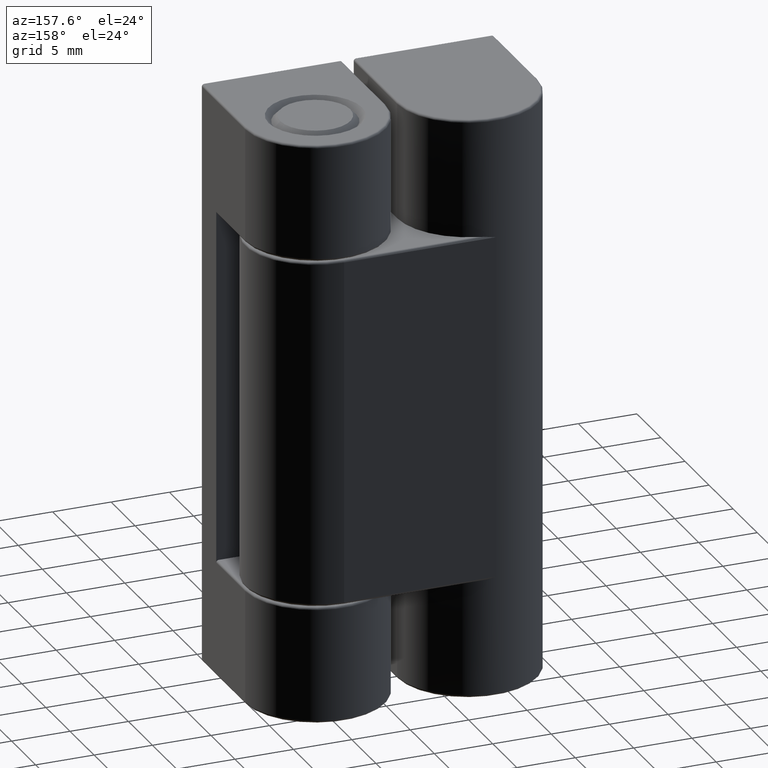
[diagram: clean part render]
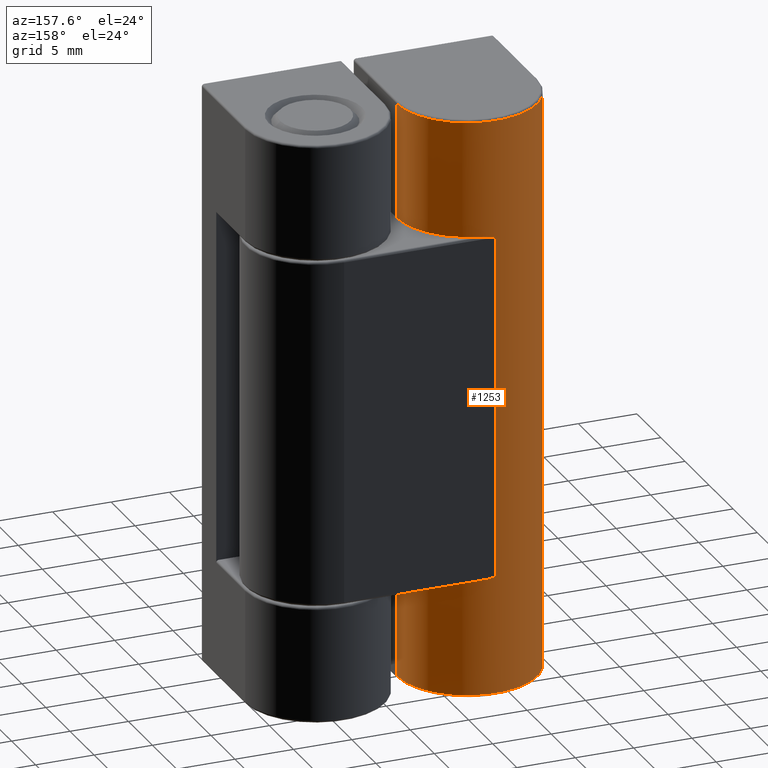
[diagram: same view with one face highlighted and labeled with its STEP entity id]
A machine part, auxiliary view. The second image highlights one B-rep face of the part: STEP entity #1253.
In plain terms, the highlighted cylindrical surface (partial cylindrical patch) has radius 6 mm, axis along (0, 0, -1).
Its self-contained STEP definition (entity closure, byte-faithful):
#49=B_SPLINE_CURVE_WITH_KNOTS('',3,(#1954,#1955,#1956,#1957),
 .UNSPECIFIED.,.F.,.F.,(4,4),(0.,0.147750049471567),.UNSPECIFIED.);
#50=B_SPLINE_CURVE_WITH_KNOTS('',3,(#2005,#2006,#2007,#2008),
 .UNSPECIFIED.,.F.,.F.,(4,4),(0.284684440992349,0.432434490463916),
 .UNSPECIFIED.);
#133=FACE_OUTER_BOUND('',#211,.T.);
#211=EDGE_LOOP('',(#960,#961,#962,#963,#964,#965,#966,#967,#968,#969));
#327=LINE('',#1991,#426);
#335=LINE('',#2033,#434);
#336=LINE('',#2037,#435);
#337=LINE('',#2041,#436);
#426=VECTOR('',#1568,29.4);
#434=VECTOR('',#1610,49.6);
#435=VECTOR('',#1613,9.9);
#436=VECTOR('',#1618,9.9);
#507=CIRCLE('',#1354,6.);
#509=CIRCLE('',#1358,6.);
#510=CIRCLE('',#1359,6.);
#511=CIRCLE('',#1360,6.);
#585=VERTEX_POINT('',#1951);
#586=VERTEX_POINT('',#1953);
#598=VERTEX_POINT('',#1990);
#602=VERTEX_POINT('',#2004);
#605=VERTEX_POINT('',#2014);
#607=VERTEX_POINT('',#2020);
#611=VERTEX_POINT('',#2032);
#612=VERTEX_POINT('',#2034);
#613=VERTEX_POINT('',#2036);
#614=VERTEX_POINT('',#2039);
#713=EDGE_CURVE('',#585,#586,#49,.F.);
#730=EDGE_CURVE('',#598,#586,#327,.T.);
#737=EDGE_CURVE('',#598,#602,#50,.F.);
#745=EDGE_CURVE('',#605,#607,#507,.T.);
#749=EDGE_CURVE('',#611,#605,#335,.T.);
#750=EDGE_CURVE('',#612,#611,#509,.T.);
#751=EDGE_CURVE('',#612,#613,#336,.T.);
#752=EDGE_CURVE('',#613,#602,#510,.T.);
#753=EDGE_CURVE('',#585,#614,#511,.T.);
#754=EDGE_CURVE('',#614,#607,#337,.T.);
#960=ORIENTED_EDGE('',*,*,#745,.F.);
#961=ORIENTED_EDGE('',*,*,#749,.F.);
#962=ORIENTED_EDGE('',*,*,#750,.F.);
#963=ORIENTED_EDGE('',*,*,#751,.T.);
#964=ORIENTED_EDGE('',*,*,#752,.T.);
#965=ORIENTED_EDGE('',*,*,#737,.F.);
#966=ORIENTED_EDGE('',*,*,#730,.T.);
#967=ORIENTED_EDGE('',*,*,#713,.F.);
#968=ORIENTED_EDGE('',*,*,#753,.T.);
#969=ORIENTED_EDGE('',*,*,#754,.T.);
#1210=CYLINDRICAL_SURFACE('',#1357,6.);
#1253=ADVANCED_FACE('',(#133),#1210,.T.);
#1354=AXIS2_PLACEMENT_3D('',#2024,#1600,#1601);
#1357=AXIS2_PLACEMENT_3D('',#2031,#1608,#1609);
#1358=AXIS2_PLACEMENT_3D('',#2035,#1611,#1612);
#1359=AXIS2_PLACEMENT_3D('',#2038,#1614,#1615);
#1360=AXIS2_PLACEMENT_3D('',#2040,#1616,#1617);
#1568=DIRECTION('',(0.,0.,-1.));
#1600=DIRECTION('center_axis',(0.,0.,-1.));
#1601=DIRECTION('ref_axis',(-1.60812264967664E-16,1.,0.));
#1608=DIRECTION('center_axis',(0.,0.,-1.));
#1609=DIRECTION('ref_axis',(1.,0.,0.));
#1610=DIRECTION('',(0.,0.,-1.));
#1611=DIRECTION('center_axis',(0.,0.,1.));
#1612=DIRECTION('ref_axis',(-1.60812264967664E-16,1.,0.));
#1613=DIRECTION('',(0.,0.,-1.));
#1614=DIRECTION('center_axis',(0.,0.,1.));
#1615=DIRECTION('ref_axis',(1.,0.,0.));
#1616=DIRECTION('center_axis',(0.,0.,-1.));
#1617=DIRECTION('ref_axis',(1.,0.,0.));
#1618=DIRECTION('',(0.,0.,-1.));
#1951=CARTESIAN_POINT('',(1.53622914957372,14.8,-39.9));
#1953=CARTESIAN_POINT('',(-1.38777878078145E-16,15.,-39.7));
#1954=CARTESIAN_POINT('Ctrl Pts',(0.,15.,-39.7));
#1955=CARTESIAN_POINT('Ctrl Pts',(0.484491498409055,15.,-39.788455640866));
#1956=CARTESIAN_POINT('Ctrl Pts',(1.060145656832,14.9260988515829,-39.9));
#1957=CARTESIAN_POINT('Ctrl Pts',(1.53622914957372,14.8,-39.9));
#1990=CARTESIAN_POINT('',(-1.38777878078145E-16,15.,-10.3));
#1991=CARTESIAN_POINT('',(-1.38777878078145E-16,15.,0.));
#2004=CARTESIAN_POINT('',(1.53622914957372,14.8,-10.1));
#2005=CARTESIAN_POINT('Ctrl Pts',(1.53622914957372,14.8,-10.1));
#2006=CARTESIAN_POINT('Ctrl Pts',(1.060145656832,14.9260988515829,-10.1));
#2007=CARTESIAN_POINT('Ctrl Pts',(0.484491498409055,15.,-10.211544359134));
#2008=CARTESIAN_POINT('Ctrl Pts',(0.,15.,-10.3));
#2014=CARTESIAN_POINT('',(-6.,9.,-49.8));
#2020=CARTESIAN_POINT('',(6.,9.,-49.8));
#2024=CARTESIAN_POINT('Origin',(-1.38777878078145E-16,9.,-49.8));
#2031=CARTESIAN_POINT('Origin',(-1.38777878078145E-16,9.,0.));
#2032=CARTESIAN_POINT('',(-6.,9.,-0.2));
#2033=CARTESIAN_POINT('',(-6.,9.,0.));
#2034=CARTESIAN_POINT('',(6.,9.,-0.2));
#2035=CARTESIAN_POINT('Origin',(-1.38777878078145E-16,9.,-0.2));
#2036=CARTESIAN_POINT('',(6.,9.,-10.1));
#2037=CARTESIAN_POINT('',(6.,9.,0.));
#2038=CARTESIAN_POINT('Origin',(-1.38777878078145E-16,9.,-10.1));
#2039=CARTESIAN_POINT('',(6.,9.,-39.9));
#2040=CARTESIAN_POINT('Origin',(-1.38777878078145E-16,9.,-39.9));
#2041=CARTESIAN_POINT('',(6.,9.,0.));